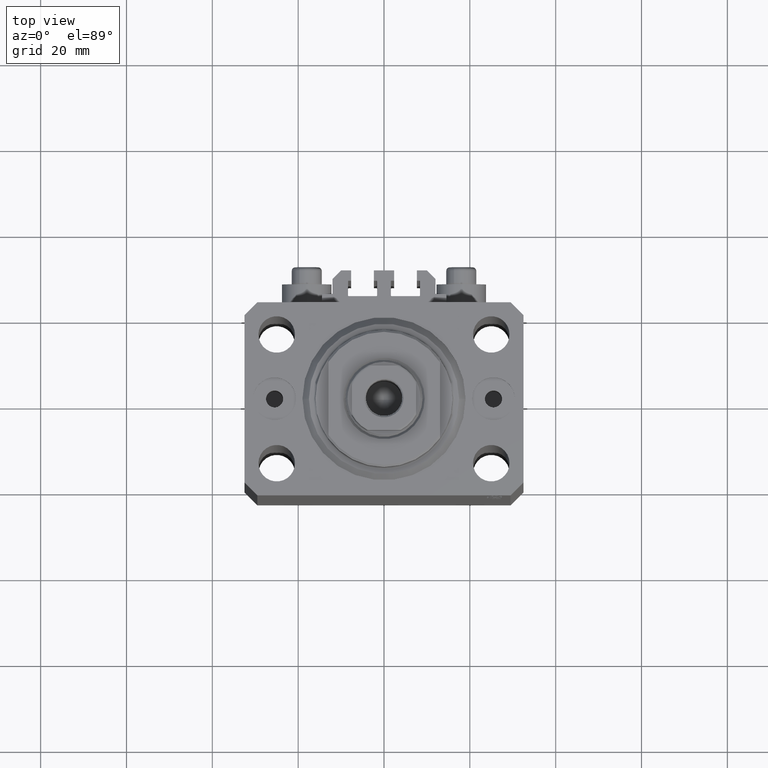
[diagram: clean part render]
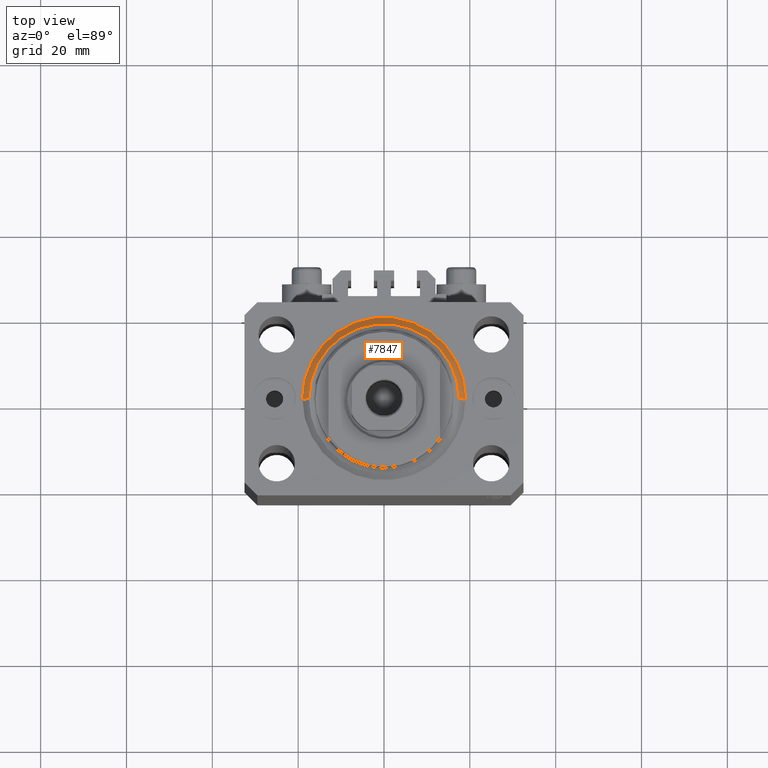
[diagram: same view with one face highlighted and labeled with its STEP entity id]
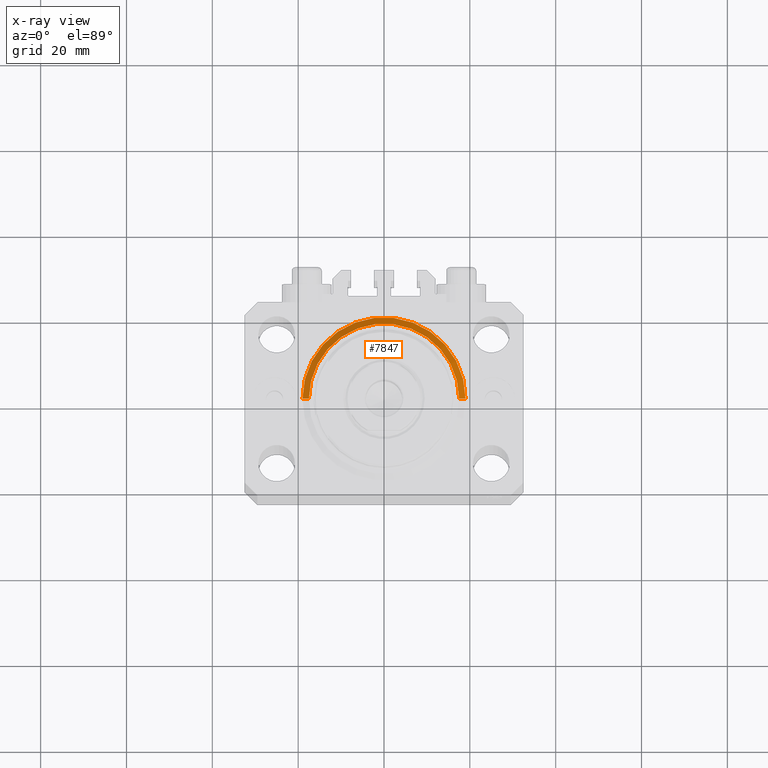
[diagram: x-ray of the same camera — body ghosted, the highlighted face saturated]
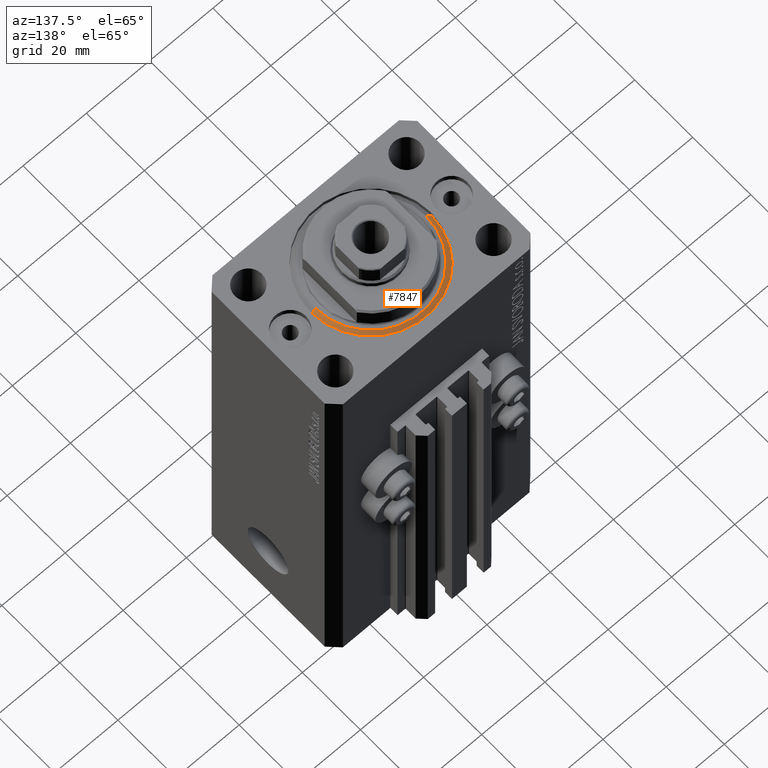
[diagram: same view with one face highlighted and labeled with its STEP entity id]
A machine part, top view. The second image highlights one B-rep face of the part: STEP entity #7847.
The next image is the same camera in x-ray: the body ghosted, the highlighted face saturated — about 0% of this face is hidden behind the body in this view.
A second angle (auxiliary view) of the same face is appended — the face is thin or edge-on in the first view.
In plain terms, the highlighted conical surface has half-angle 45 deg.
Its self-contained STEP definition (entity closure, byte-faithful):
#1422 = ORIENTED_EDGE ( 'NONE', *, *, #44893, .F. ) ;
#4572 = VERTEX_POINT ( 'NONE', #35753 ) ;
#6514 = AXIS2_PLACEMENT_3D ( 'NONE', #9339, #45134, #23630 ) ;
#6915 = CARTESIAN_POINT ( 'NONE',  ( -19.00000000000000000, 0.000000000000000000, 1.500000000000004885 ) ) ;
#7847 = ADVANCED_FACE ( 'NONE', ( #45488 ), #43243, .T. ) ;
#8637 = ORIENTED_EDGE ( 'NONE', *, *, #22043, .T. ) ;
#9339 = CARTESIAN_POINT ( 'NONE',  ( 0.000000000000000000, 0.000000000000000000, 0.000000000000000000 ) ) ;
#11413 = VERTEX_POINT ( 'NONE', #31690 ) ;
#12804 = CARTESIAN_POINT ( 'NONE',  ( 0.000000000000000000, 0.000000000000000000, 1.500000000000004885 ) ) ;
#12900 = EDGE_LOOP ( 'NONE', ( #41515, #8637, #1422, #17924 ) ) ;
#13014 = DIRECTION ( 'NONE',  ( -0.000000000000000000, -0.000000000000000000, 1.000000000000000000 ) ) ;
#13254 = VECTOR ( 'NONE', #31333, 1000.000000000000000 ) ;
#16766 = CARTESIAN_POINT ( 'NONE',  ( 19.00000000000000000, 0.000000000000000000, 1.500000000000004885 ) ) ;
#17924 = ORIENTED_EDGE ( 'NONE', *, *, #40719, .F. ) ;
#19485 = VERTEX_POINT ( 'NONE', #32602 ) ;
#20530 = VERTEX_POINT ( 'NONE', #6915 ) ;
#21008 = AXIS2_PLACEMENT_3D ( 'NONE', #37875, #13014, #41674 ) ;
#22043 = EDGE_CURVE ( 'NONE', #4572, #20530, #32334, .T. ) ;
#23294 = CIRCLE ( 'NONE', #6514, 17.49999999999999289 ) ;
#23630 = DIRECTION ( 'NONE',  ( 1.000000000000000000, 0.000000000000000000, 0.000000000000000000 ) ) ;
#23925 = LINE ( 'NONE', #16766, #13254 ) ;
#27268 = AXIS2_PLACEMENT_3D ( 'NONE', #12804, #38121, #28048 ) ;
#28048 = DIRECTION ( 'NONE',  ( 1.000000000000000000, 0.000000000000000000, 0.000000000000000000 ) ) ;
#31333 = DIRECTION ( 'NONE',  ( 0.7071067811865483499, 0.000000000000000000, 0.7071067811865467956 ) ) ;
#31690 = CARTESIAN_POINT ( 'NONE',  ( 19.00000000000000000, 2.326828918379970970E-15, 1.500000000000004885 ) ) ;
#32334 = LINE ( 'NONE', #46645, #34465 ) ;
#32602 = CARTESIAN_POINT ( 'NONE',  ( 17.49999999999999289, 0.000000000000000000, 0.000000000000000000 ) ) ;
#33215 = CIRCLE ( 'NONE', #21008, 19.00000000000000000 ) ;
#34465 = VECTOR ( 'NONE', #47107, 1000.000000000000000 ) ;
#35753 = CARTESIAN_POINT ( 'NONE',  ( -17.49999999999999289, 2.234980408443919215E-15, 0.000000000000000000 ) ) ;
#37875 = CARTESIAN_POINT ( 'NONE',  ( 0.000000000000000000, 0.000000000000000000, 1.500000000000004885 ) ) ;
#38121 = DIRECTION ( 'NONE',  ( -0.000000000000000000, -0.000000000000000000, 1.000000000000000000 ) ) ;
#40719 = EDGE_CURVE ( 'NONE', #19485, #11413, #23925, .T. ) ;
#41515 = ORIENTED_EDGE ( 'NONE', *, *, #45279, .F. ) ;
#41674 = DIRECTION ( 'NONE',  ( 1.000000000000000000, 0.000000000000000000, 0.000000000000000000 ) ) ;
#43243 = CONICAL_SURFACE ( 'NONE', #27268, 19.00000000000000000, 0.7853981633974492782 ) ;
#44893 = EDGE_CURVE ( 'NONE', #11413, #20530, #33215, .T. ) ;
#45134 = DIRECTION ( 'NONE',  ( -0.000000000000000000, -0.000000000000000000, -1.000000000000000000 ) ) ;
#45279 = EDGE_CURVE ( 'NONE', #4572, #19485, #23294, .T. ) ;
#45488 = FACE_OUTER_BOUND ( 'NONE', #12900, .T. ) ;
#46645 = CARTESIAN_POINT ( 'NONE',  ( -19.00000000000000000, 2.326828918379970970E-15, 1.500000000000004885 ) ) ;
#47107 = DIRECTION ( 'NONE',  ( -0.7071067811865483499, 8.659560562354943952E-17, 0.7071067811865467956 ) ) ;